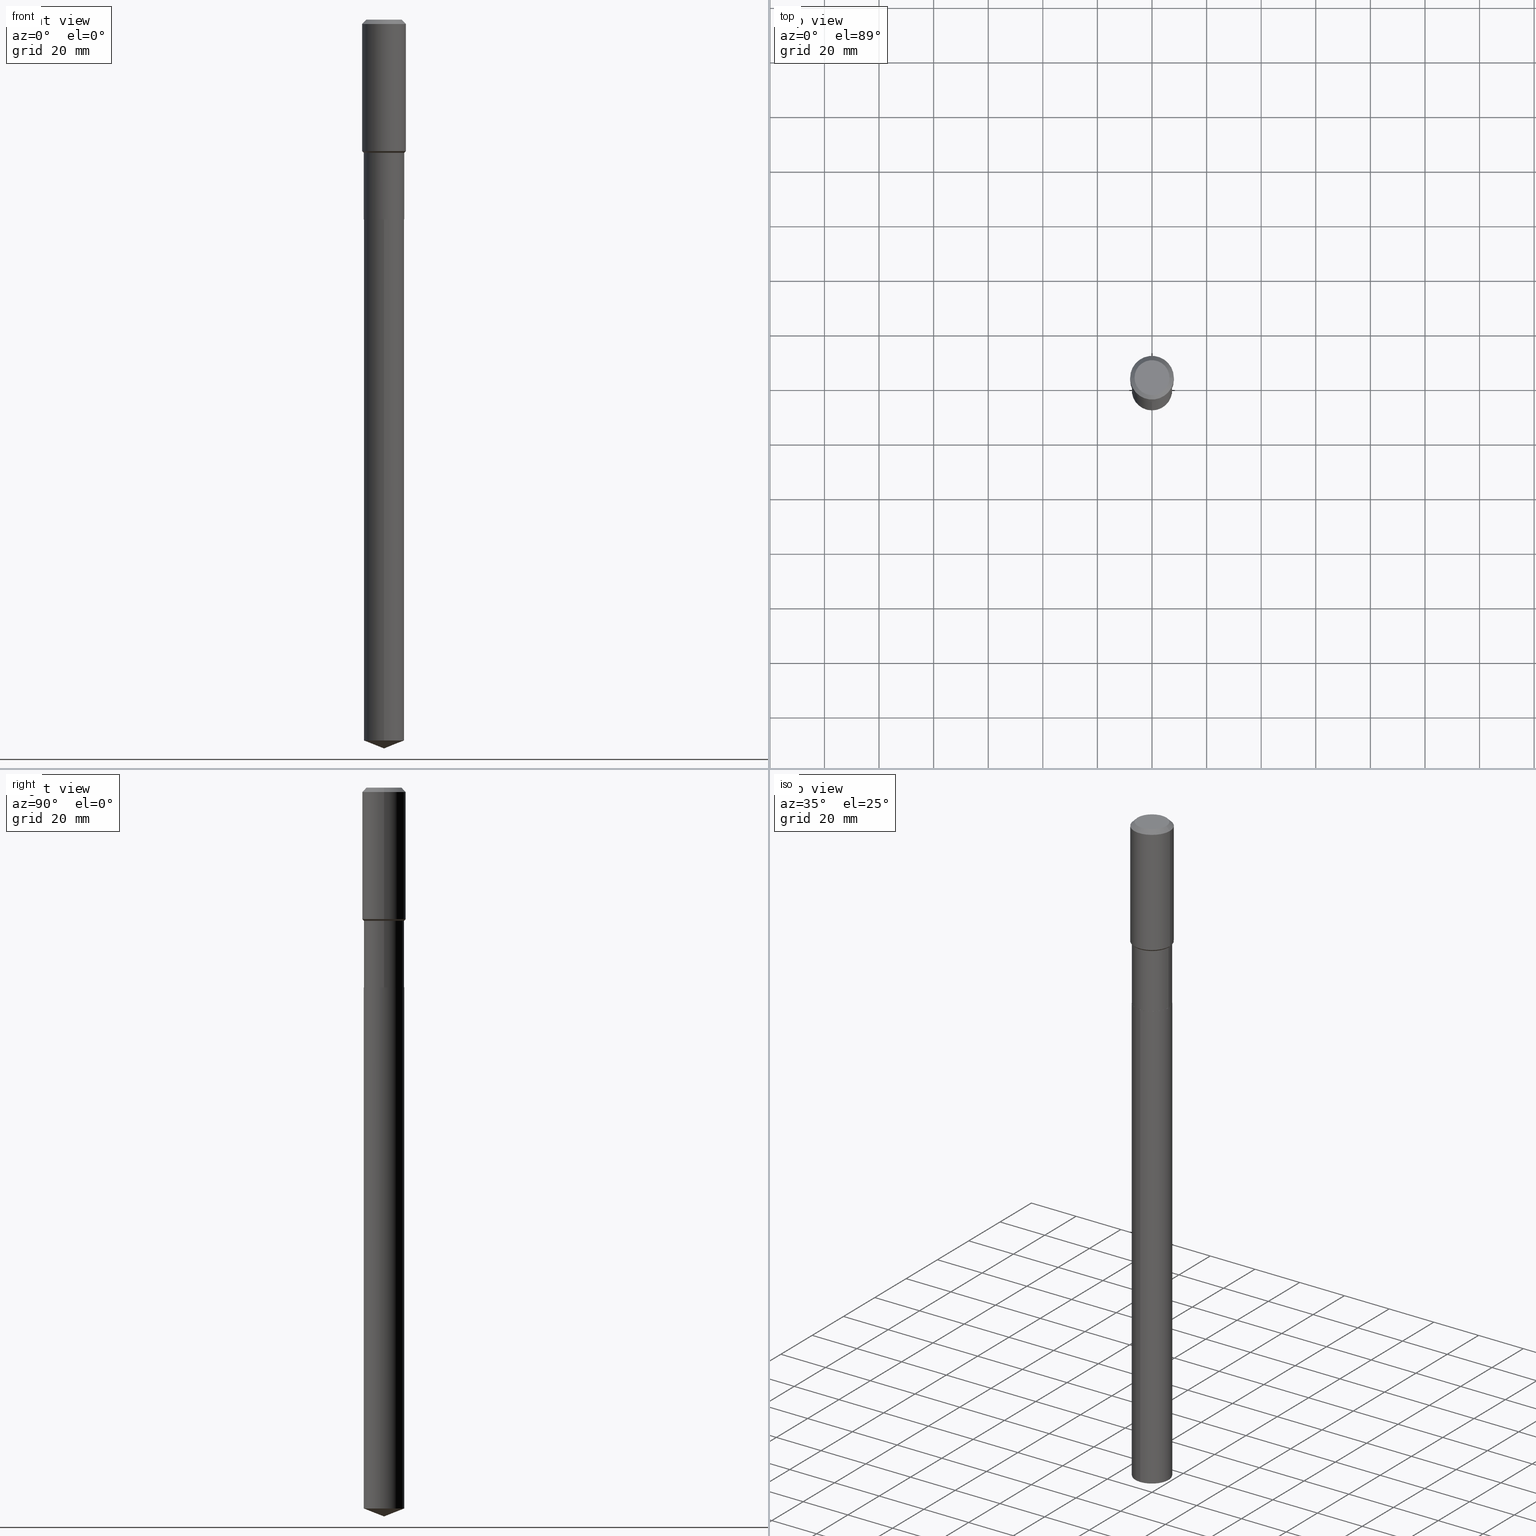
[diagram: canonical four-view strip — front | top / right | iso, engineering-drawing reading convention]
A machine part, canonical four-view strip (front | top / right | iso — engineering-drawing reading convention). The complete STEP part file that produces these views, byte-faithful:
ISO-10303-21;
HEADER;
FILE_DESCRIPTION (( 'STEP AP203' ),
    '1' );
FILE_NAME ('66807.STEP',
    '2024-04-25T06:45:04',
    ( '' ),
    ( '' ),
    'SwSTEP 2.0',
    'SolidWorks 2023',
    '' );
FILE_SCHEMA (( 'CONFIG_CONTROL_DESIGN' ));
ENDSEC;

DATA;
#1 = VERTEX_POINT ( 'NONE', #80 ) ;
#2 = DIRECTION ( 'NONE',  ( -2.445468806185136597E-29, 3.491481338843145583E-15, 1.000000000000000000 ) ) ;
#3 = ADVANCED_FACE ( 'NONE', ( #263 ), #102, .T. ) ;
#4 = ORIENTED_EDGE ( 'NONE', *, *, #92, .F. ) ;
#5 = DIRECTION ( 'NONE',  ( 1.000000000000000000, -6.982962677686265922E-15, 4.876176775795935793E-29 ) ) ;
#6 = CIRCLE ( 'NONE', #38, 0.2908499999999999974 ) ;
#7 = AXIS2_PLACEMENT_3D ( 'NONE', #27, #485, #24 ) ;
#8 = EDGE_LOOP ( 'NONE', ( #171, #224, #110, #112 ) ) ;
#9 = CYLINDRICAL_SURFACE ( 'NONE', #241, 0.2913499999999999424 ) ;
#10 = AXIS2_PLACEMENT_3D ( 'NONE', #61, #57, #182 ) ;
#11 = CARTESIAN_POINT ( 'NONE',  ( 4.639054325333201492E-29, -6.623340099785443286E-15, -1.896999999999998909 ) ) ;
#12 = ORIENTED_EDGE ( 'NONE', *, *, #276, .F. ) ;
#13 = DIRECTION ( 'NONE',  ( -6.982962677686265922E-15, -1.000000000000000000, 3.750606478344620614E-15 ) ) ;
#14 = CARTESIAN_POINT ( 'NONE',  ( 2.570700987484465252E-28, -3.670210724211602474E-14, -10.51200000000000045 ) ) ;
#15 = APPROVAL_PERSON_ORGANIZATION ( #179, #445, #316 ) ;
#16 = DIRECTION ( 'NONE',  ( -2.445468806185136597E-29, 3.491481338843145583E-15, 1.000000000000000000 ) ) ;
#17 = PERSON_AND_ORGANIZATION ( #104, #213 ) ;
#18 = EDGE_CURVE ( 'NONE', #295, #184, #487, .T. ) ;
#19 = CONICAL_SURFACE ( 'NONE', #151, 99.94676754583802847, 1.195550537616112852 ) ;
#20 = ORIENTED_EDGE ( 'NONE', *, *, #235, .T. ) ;
#21 = CIRCLE ( 'NONE', #384, 0.2913499999999999979 ) ;
#22 = ORIENTED_EDGE ( 'NONE', *, *, #18, .F. ) ;
#23 = CALENDAR_DATE ( 2024, 25, 4 ) ;
#24 = DIRECTION ( 'NONE',  ( 1.000000000000000000, -6.982962677686267499E-15, 0.000000000000000000 ) ) ;
#25 = ADVANCED_FACE ( 'NONE', ( #186 ), #221, .F. ) ;
#26 = ORIENTED_EDGE ( 'NONE', *, *, #68, .T. ) ;
#27 = CARTESIAN_POINT ( 'NONE',  ( 4.696767389159171856E-29, -6.705739059382142988E-15, -1.920599999999999197 ) ) ;
#28 = LINE ( 'NONE', #192, #332 ) ;
#29 = APPROVAL_PERSON_ORGANIZATION ( #150, #464, #291 ) ;
#30 = ORIENTED_EDGE ( 'NONE', *, *, #481, .F. ) ;
#31 = DIRECTION ( 'NONE',  ( -2.445468806185136597E-29, 3.491481338843145583E-15, 1.000000000000000000 ) ) ;
#32 = UNCERTAINTY_MEASURE_WITH_UNIT (LENGTH_MEASURE( 1.000000000000000082E-05 ), #99, 'distance_accuracy_value', 'NONE');
#33 = CARTESIAN_POINT ( 'NONE',  ( -9.427742298522569579E-47, 1.346031739168368629E-32, 3.855188123715871501E-18 ) ) ;
#34 = DATE_AND_TIME ( #302, #376 ) ;
#35 = ADVANCED_FACE ( 'NONE', ( #197 ), #19, .T. ) ;
#36 = CARTESIAN_POINT ( 'NONE',  ( -0.2908499999999999974, -7.993884740681349001E-15, -2.882199999999999207 ) ) ;
#37 = LINE ( 'NONE', #250, #334 ) ;
#38 = AXIS2_PLACEMENT_3D ( 'NONE', #242, #170, #301 ) ;
#39 = DIRECTION ( 'NONE',  ( -2.445491696897657882E-29, 3.491448558039956582E-15, 1.000000000000000000 ) ) ;
#40 = CARTESIAN_POINT ( 'NONE',  ( -0.3149500000000000077, -1.183779908383150389E-15, -0.06299000000000036514 ) ) ;
#41 = EDGE_LOOP ( 'NONE', ( #49, #154, #95, #223 ) ) ;
#42 = CARTESIAN_POINT ( 'NONE',  ( 1.540400801016026329E-30, -2.199284095337310135E-16, -0.06299000000000036514 ) ) ;
#43 = ADVANCED_FACE ( 'NONE', ( #73 ), #261, .T. ) ;
#44 = ORIENTED_EDGE ( 'NONE', *, *, #397, .T. ) ;
#45 = VERTEX_POINT ( 'NONE', #36 ) ;
#46 = DIRECTION ( 'NONE',  ( -1.000000000000000000, 6.982962677686266711E-15, 0.000000000000000000 ) ) ;
#47 = AXIS2_PLACEMENT_3D ( 'NONE', #126, #272, #401 ) ;
#48 = CONICAL_SURFACE ( 'NONE', #7, 0.2913499999999998868, 0.7853981633974497223 ) ;
#49 = ORIENTED_EDGE ( 'NONE', *, *, #393, .T. ) ;
#50 = ORIENTED_EDGE ( 'NONE', *, *, #433, .T. ) ;
#51 = CARTESIAN_POINT ( 'NONE',  ( -0.3149500000000001743, 2.237854346276436774E-15, -1.549218606675783237E-29 ) ) ;
#52 = ORIENTED_EDGE ( 'NONE', *, *, #319, .T. ) ;
#53 = EDGE_CURVE ( 'NONE', #308, #488, #270, .T. ) ;
#54 = EDGE_LOOP ( 'NONE', ( #381, #108 ) ) ;
#55 = FACE_OUTER_BOUND ( 'NONE', #174, .T. ) ;
#56 = CARTESIAN_POINT ( 'NONE',  ( 7.048330193186798900E-29, -1.006314751481371118E-14, -2.882199999999999207 ) ) ;
#57 = DIRECTION ( 'NONE',  ( -2.445468806185136597E-29, 3.491481338843145583E-15, 1.000000000000000000 ) ) ;
#58 = AXIS2_PLACEMENT_3D ( 'NONE', #419, #262, #293 ) ;
#59 = CIRCLE ( 'NONE', #365, 0.2913499999999999979 ) ;
#60 = DIRECTION ( 'NONE',  ( -2.445491696897657882E-29, 3.491448558039956977E-15, 1.000000000000000000 ) ) ;
#61 = CARTESIAN_POINT ( 'NONE',  ( 4.696767389159171856E-29, -6.705739059382142988E-15, -1.920599999999999197 ) ) ;
#62 = ADVANCED_FACE ( 'NONE', ( #412 ), #443, .F. ) ;
#63 = LINE ( 'NONE', #284, #113 ) ;
#64 = CARTESIAN_POINT ( 'NONE',  ( 0.2519600000000000173, -2.054606664725195058E-15, 3.855188123729206640E-18 ) ) ;
#65 = ORIENTED_EDGE ( 'NONE', *, *, #253, .F. ) ;
#66 = CALENDAR_DATE ( 2024, 25, 4 ) ;
#67 = AXIS2_PLACEMENT_3D ( 'NONE', #96, #305, #5 ) ;
#68 = EDGE_CURVE ( 'NONE', #407, #325, #162, .T. ) ;
#69 = CC_DESIGN_APPROVAL ( #209, ( #413 ) ) ;
#70 = CARTESIAN_POINT ( 'NONE',  ( 7.048330193186798900E-29, -1.006314751481371118E-14, -2.882199999999999207 ) ) ;
#71 = PERSON_AND_ORGANIZATION_ROLE ( 'design_supplier' ) ;
#72 = MANIFOLD_SOLID_BREP ( 'Body-Move/Copy2[1]', #364 ) ;
#73 = FACE_OUTER_BOUND ( 'NONE', #227, .T. ) ;
#74 = ORIENTED_EDGE ( 'NONE', *, *, #259, .F. ) ;
#75 = AXIS2_PLACEMENT_3D ( 'NONE', #420, #458, #84 ) ;
#76 = DIRECTION ( 'NONE',  ( -2.445468806185136597E-29, 3.491481338843145583E-15, 1.000000000000000000 ) ) ;
#77 = DIRECTION ( 'NONE',  ( 2.445491696897657322E-29, -3.491448558039956977E-15, -1.000000000000000000 ) ) ;
#78 = CC_DESIGN_PERSON_AND_ORGANIZATION_ASSIGNMENT ( #17, #181, ( #164 ) ) ;
#79 = CARTESIAN_POINT ( 'NONE',  ( 0.2908499999999999974, -1.209414220961876337E-14, -2.882199999999999207 ) ) ;
#80 = CARTESIAN_POINT ( 'NONE',  ( 2.570700871778817883E-28, -3.670210724211602474E-14, -10.51200000000000045 ) ) ;
#81 = APPROVAL_STATUS ( 'not_yet_approved' ) ;
#82 = DIRECTION ( 'NONE',  ( -2.445491696897657882E-29, 3.491448558039956977E-15, 1.000000000000000000 ) ) ;
#83 = APPLICATION_PROTOCOL_DEFINITION ( 'international standard', 'config_control_design', 1994, #141 ) ;
#84 = DIRECTION ( 'NONE',  ( -1.000000000000000000, 6.982962677686266711E-15, 0.000000000000000000 ) ) ;
#85 = DIRECTION ( 'NONE',  ( -2.445468806185136597E-29, 3.491481338843145583E-15, 1.000000000000000000 ) ) ;
#86 = EDGE_LOOP ( 'NONE', ( #176, #333, #337, #119 ) ) ;
#87 = ORIENTED_EDGE ( 'NONE', *, *, #440, .T. ) ;
#88 = LINE ( 'NONE', #51, #189 ) ;
#89 = AXIS2_PLACEMENT_3D ( 'NONE', #175, #85, #312 ) ;
#90 = DIRECTION ( 'NONE',  ( 1.000000000000000000, -6.982962677686265922E-15, 4.876176775795935232E-29 ) ) ;
#91 = AXIS2_PLACEMENT_3D ( 'NONE', #153, #207, #231 ) ;
#92 = EDGE_CURVE ( 'NONE', #308, #346, #28, .T. ) ;
#93 = LINE ( 'NONE', #14, #404 ) ;
#94 = ORIENTED_EDGE ( 'NONE', *, *, #345, .F. ) ;
#95 = ORIENTED_EDGE ( 'NONE', *, *, #433, .F. ) ;
#96 = CARTESIAN_POINT ( 'NONE',  ( 7.048330193186798900E-29, -1.006314751481371118E-14, -2.882199999999999207 ) ) ;
#97 = FACE_OUTER_BOUND ( 'NONE', #41, .T. ) ;
#98 = CONICAL_SURFACE ( 'NONE', #249, 0.2908499999999999974, 0.7853981633973118326 ) ;
#99 =( CONVERSION_BASED_UNIT ( 'INCH', #300 ) LENGTH_UNIT ( ) NAMED_UNIT ( #279 ) );
#100 = ADVANCED_FACE ( 'NONE', ( #340 ), #296, .T. ) ;
#101 = CYLINDRICAL_SURFACE ( 'NONE', #294, 0.3149500000000001743 ) ;
#102 = CONICAL_SURFACE ( 'NONE', #58, 0.2913499999999998868, 0.7853981633974497223 ) ;
#103 = AXIS2_PLACEMENT_3D ( 'NONE', #354, #131, #268 ) ;
#104 = PERSON ( 'UNSPECIFIED', 'UNSPECIFIED', 'UNSPECIFIED', ('UNSPECIFIED'), ('UNSPECIFIED'), ('UNSPECIFIED') ) ;
#105 = DIRECTION ( 'NONE',  ( -0.7071067811865484609, 7.493145998870357316E-15, 0.7071067811865464625 ) ) ;
#106 = DIRECTION ( 'NONE',  ( -2.445468806185136597E-29, 3.491481338843145583E-15, 1.000000000000000000 ) ) ;
#107 = CARTESIAN_POINT ( 'NONE',  ( -0.2913499999999999424, 2.070166260637051482E-15, -1.433131738545766651E-29 ) ) ;
#108 = ORIENTED_EDGE ( 'NONE', *, *, #203, .F. ) ;
#109 = ADVANCED_BREP_SHAPE_REPRESENTATION ( '66807', ( #72, #391, #395 ), #233 ) ;
#110 = ORIENTED_EDGE ( 'NONE', *, *, #111, .T. ) ;
#111 = EDGE_CURVE ( 'NONE', #191, #482, #117, .T. ) ;
#112 = ORIENTED_EDGE ( 'NONE', *, *, #409, .F. ) ;
#113 = VECTOR ( 'NONE', #105, 39.37007874015748854 ) ;
#114 = APPROVAL_DATE_TIME ( #34, #209 ) ;
#115 = CARTESIAN_POINT ( 'NONE',  ( -0.2519600000000000173, 1.869391481036695286E-15, 3.855188123703182704E-18 ) ) ;
#116 = CC_DESIGN_APPROVAL ( #445, ( #164 ) ) ;
#117 = LINE ( 'NONE', #266, #168 ) ;
#118 = LINE ( 'NONE', #417, #446 ) ;
#119 = ORIENTED_EDGE ( 'NONE', *, *, #440, .F. ) ;
#120 = CARTESIAN_POINT ( 'NONE',  ( 0.000000000000000000, 0.000000000000000000, 0.000000000000000000 ) ) ;
#121 = FACE_OUTER_BOUND ( 'NONE', #225, .T. ) ;
#122 = ORIENTED_EDGE ( 'NONE', *, *, #53, .F. ) ;
#123 = AXIS2_PLACEMENT_3D ( 'NONE', #341, #232, #90 ) ;
#124 = ORIENTED_EDGE ( 'NONE', *, *, #336, .T. ) ;
#125 = PRODUCT_DEFINITION_FORMATION_WITH_SPECIFIED_SOURCE ( 'ANY', '', #228, .NOT_KNOWN. ) ;
#126 = CARTESIAN_POINT ( 'NONE',  ( 4.639054325333201492E-29, -6.623340099785443286E-15, -1.896999999999998909 ) ) ;
#127 = AXIS2_PLACEMENT_3D ( 'NONE', #371, #76, #158 ) ;
#128 = FACE_OUTER_BOUND ( 'NONE', #208, .T. ) ;
#129 = ADVANCED_FACE ( 'NONE', ( #229 ), #380, .T. ) ;
#130 = ORIENTED_EDGE ( 'NONE', *, *, #453, .F. ) ;
#131 = DIRECTION ( 'NONE',  ( -2.445468806185136597E-29, 3.491481338843145583E-15, 1.000000000000000000 ) ) ;
#132 = ORIENTED_EDGE ( 'NONE', *, *, #457, .T. ) ;
#133 = AXIS2_PLACEMENT_3D ( 'NONE', #297, #193, #451 ) ;
#134 = APPLICATION_PROTOCOL_DEFINITION ( 'international standard', 'config_control_design', 1994, #169 ) ;
#135 = DIRECTION ( 'NONE',  ( 1.000000000000000000, -6.982962677686265922E-15, 4.876176775795936353E-29 ) ) ;
#136 = COORDINATED_UNIVERSAL_TIME_OFFSET ( 5, 0, .BEHIND. ) ;
#137 = EDGE_CURVE ( 'NONE', #408, #45, #6, .T. ) ;
#138 = ORIENTED_EDGE ( 'NONE', *, *, #367, .T. ) ;
#139 = DIRECTION ( 'NONE',  ( -0.7071067811865453523, 2.468850131082234184E-15, -0.7071067811865496822 ) ) ;
#140 = DIRECTION ( 'NONE',  ( 6.611014441532049234E-15, 0.9304175679820246847, 0.3665012267242966360 ) ) ;
#141 = APPLICATION_CONTEXT ( 'configuration controlled 3d designs of mechanical parts and assemblies' ) ;
#142 = CARTESIAN_POINT ( 'NONE',  ( 2.070166260637307467E-15, 0.2913499999999899503, -2.882200000000000095 ) ) ;
#143 = APPROVAL_STATUS ( 'not_yet_approved' ) ;
#144 = EDGE_LOOP ( 'NONE', ( #201, #314, #124, #324 ) ) ;
#145 = PERSON_AND_ORGANIZATION ( #104, #213 ) ;
#146 = DIRECTION ( 'NONE',  ( 1.000000000000000000, -6.982962677686269077E-15, 0.000000000000000000 ) ) ;
#147 = EDGE_LOOP ( 'NONE', ( #26, #390 ) ) ;
#148 = PERSON_AND_ORGANIZATION_ROLE ( 'classification_officer' ) ;
#149 = CARTESIAN_POINT ( 'NONE',  ( 7.048330193186798900E-29, -1.006314751481371118E-14, -2.882199999999999207 ) ) ;
#150 = PERSON_AND_ORGANIZATION ( #104, #213 ) ;
#151 = AXIS2_PLACEMENT_3D ( 'NONE', #378, #39, #410 ) ;
#152 = VECTOR ( 'NONE', #60, 39.37007874015748143 ) ;
#153 = CARTESIAN_POINT ( 'NONE',  ( 2.542628388944317848E-28, -3.630150277642420534E-14, -10.39723418292958534 ) ) ;
#154 = ORIENTED_EDGE ( 'NONE', *, *, #18, .T. ) ;
#155 = PERSON_AND_ORGANIZATION ( #104, #213 ) ;
#156 = ADVANCED_FACE ( 'NONE', ( #128 ), #9, .T. ) ;
#157 = DIRECTION ( 'NONE',  ( -6.982962677686265922E-15, -1.000000000000000000, 3.750606478344620614E-15 ) ) ;
#158 = DIRECTION ( 'NONE',  ( 1.000000000000000000, -6.982962677686267499E-15, 0.000000000000000000 ) ) ;
#159 = CARTESIAN_POINT ( 'NONE',  ( -4.713871149261284790E-47, 6.730158695841843144E-33, 1.927594061857935750E-18 ) ) ;
#160 = AXIS2_PLACEMENT_3D ( 'NONE', #462, #432, #13 ) ;
#161 = PRODUCT_DEFINITION_SHAPE ( 'NONE', 'NONE',  #164 ) ;
#162 = CIRCLE ( 'NONE', #211, 0.2519600000000000173 ) ;
#163 = ORIENTED_EDGE ( 'NONE', *, *, #271, .T. ) ;
#164 = PRODUCT_DEFINITION ( 'UNKNOWN', '', #125, #220 ) ;
#165 = CARTESIAN_POINT ( 'NONE',  ( 0.3149500000000002298, -8.822624195122734735E-15, -1.896999999999998909 ) ) ;
#166 = DIRECTION ( 'NONE',  ( 1.000000000000000000, -6.982962677686266711E-15, 0.000000000000000000 ) ) ;
#167 = ORIENTED_EDGE ( 'NONE', *, *, #244, .F. ) ;
#168 = VECTOR ( 'NONE', #416, 39.37007874015748143 ) ;
#169 = APPLICATION_CONTEXT ( 'configuration controlled 3d designs of mechanical parts and assemblies' ) ;
#170 = DIRECTION ( 'NONE',  ( -2.445468806185136597E-29, 3.491481338843145583E-15, 1.000000000000000000 ) ) ;
#171 = ORIENTED_EDGE ( 'NONE', *, *, #187, .F. ) ;
#172 = DIRECTION ( 'NONE',  ( -2.445468806185136877E-29, 3.491481338843145188E-15, 1.000000000000000000 ) ) ;
#173 = DIRECTION ( 'NONE',  ( -6.497071151882103270E-15, -0.9304175679820221312, 0.3665012267243032418 ) ) ;
#174 = EDGE_LOOP ( 'NONE', ( #167, #245, #163, #311 ) ) ;
#175 = CARTESIAN_POINT ( 'NONE',  ( 7.048330193186798900E-29, -1.006314751481371118E-14, -2.882199999999999207 ) ) ;
#176 = ORIENTED_EDGE ( 'NONE', *, *, #424, .T. ) ;
#177 = CIRCLE ( 'NONE', #89, 0.2908499999999999974 ) ;
#178 = PRODUCT_RELATED_PRODUCT_CATEGORY ( 'detail', '', ( #228 ) ) ;
#179 = PERSON_AND_ORGANIZATION ( #104, #213 ) ;
#180 = DIRECTION ( 'NONE',  ( 1.000000000000000000, -6.982962677686269077E-15, 0.000000000000000000 ) ) ;
#181 = PERSON_AND_ORGANIZATION_ROLE ( 'creator' ) ;
#182 = DIRECTION ( 'NONE',  ( 1.000000000000000000, -6.982962677686267499E-15, 0.000000000000000000 ) ) ;
#183 = VECTOR ( 'NONE', #455, 39.37007874015748143 ) ;
#184 = VERTEX_POINT ( 'NONE', #202 ) ;
#185 = CARTESIAN_POINT ( 'NONE',  ( 1.540400801016026329E-30, -2.199284095337310135E-16, -0.06299000000000036514 ) ) ;
#186 = FACE_OUTER_BOUND ( 'NONE', #147, .T. ) ;
#187 = EDGE_CURVE ( 'NONE', #418, #428, #88, .T. ) ;
#188 = PERSON_AND_ORGANIZATION ( #104, #213 ) ;
#189 = VECTOR ( 'NONE', #172, 39.37007874015748143 ) ;
#190 = CIRCLE ( 'NONE', #103, 0.2913499999999998868 ) ;
#191 = VERTEX_POINT ( 'NONE', #165 ) ;
#192 = CARTESIAN_POINT ( 'NONE',  ( 2.070166260637122085E-15, 0.2913499999999898948, -2.882200000000000095 ) ) ;
#193 = DIRECTION ( 'NONE',  ( -2.445491696897657882E-29, 3.491448558039956582E-15, 1.000000000000000000 ) ) ;
#194 = VECTOR ( 'NONE', #388, 39.37007874015748143 ) ;
#195 = CARTESIAN_POINT ( 'NONE',  ( -2.034486176143639215E-15, -0.2913500000000363022, -10.39723418292958534 ) ) ;
#196 = ADVANCED_FACE ( 'NONE', ( #353 ), #269, .T. ) ;
#197 = FACE_OUTER_BOUND ( 'NONE', #414, .T. ) ;
#198 = EDGE_LOOP ( 'NONE', ( #50, #138, #30, #422 ) ) ;
#199 = CARTESIAN_POINT ( 'NONE',  ( 0.3149500000000000077, -2.419212504871020909E-15, -0.06299000000000036514 ) ) ;
#200 = DIRECTION ( 'NONE',  ( -2.445468806185136597E-29, 3.491481338843145583E-15, 1.000000000000000000 ) ) ;
#201 = ORIENTED_EDGE ( 'NONE', *, *, #235, .F. ) ;
#202 = CARTESIAN_POINT ( 'NONE',  ( -0.2913499999999998868, -6.313404156126164850E-15, -1.920599999999999197 ) ) ;
#203 = EDGE_CURVE ( 'NONE', #45, #408, #177, .T. ) ;
#204 = AXIS2_PLACEMENT_3D ( 'NONE', #149, #344, #157 ) ;
#205 = EDGE_LOOP ( 'NONE', ( #330, #304, #265 ) ) ;
#206 = DIRECTION ( 'NONE',  ( 1.000000000000000000, -6.982962677686265922E-15, 4.876176775795936353E-29 ) ) ;
#207 = DIRECTION ( 'NONE',  ( -2.445491696897657882E-29, 3.491448558039956582E-15, 1.000000000000000000 ) ) ;
#208 = EDGE_LOOP ( 'NONE', ( #22, #352, #379, #452 ) ) ;
#209 = APPROVAL ( #143, 'UNSPECIFIED' ) ;
#210 = DIRECTION ( 'NONE',  ( 2.445468806185136597E-29, -3.491481338843145583E-15, -1.000000000000000000 ) ) ;
#211 = AXIS2_PLACEMENT_3D ( 'NONE', #33, #31, #486 ) ;
#212 = CARTESIAN_POINT ( 'NONE',  ( 7.048330193186798900E-29, -1.006314751481371118E-14, -2.882199999999999207 ) ) ;
#213 = ORGANIZATION ( 'UNSPECIFIED', 'UNSPECIFIED', '' ) ;
#214 = LINE ( 'NONE', #356, #152 ) ;
#215 = CARTESIAN_POINT ( 'NONE',  ( 0.000000000000000000, 0.000000000000000000, 0.000000000000000000 ) ) ;
#216 = DATE_TIME_ROLE ( 'creation_date' ) ;
#217 = APPROVAL_PERSON_ORGANIZATION ( #188, #209, #218 ) ;
#218 = APPROVAL_ROLE ( '' ) ;
#219 = ADVANCED_FACE ( 'NONE', ( #237 ), #463, .F. ) ;
#220 = DESIGN_CONTEXT ( 'detailed design', #169, 'design' ) ;
#221 = PLANE ( 'NONE',  #449 ) ;
#222 = CALENDAR_DATE ( 2024, 25, 4 ) ;
#223 = ORIENTED_EDGE ( 'NONE', *, *, #327, .F. ) ;
#224 = ORIENTED_EDGE ( 'NONE', *, *, #259, .T. ) ;
#225 = EDGE_LOOP ( 'NONE', ( #94, #411, #260, #348 ) ) ;
#226 = DIRECTION ( 'NONE',  ( -2.445468806185136597E-29, 3.491481338843145583E-15, 1.000000000000000000 ) ) ;
#227 = EDGE_LOOP ( 'NONE', ( #4, #425, #87, #12 ) ) ;
#228 = PRODUCT ( '66807', '66807', '', ( #359 ) ) ;
#229 = FACE_OUTER_BOUND ( 'NONE', #8, .T. ) ;
#230 = ADVANCED_FACE ( 'NONE', ( #55 ), #321, .T. ) ;
#231 = DIRECTION ( 'NONE',  ( -6.982962677686265922E-15, -1.000000000000000000, 0.000000000000000000 ) ) ;
#232 = DIRECTION ( 'NONE',  ( -2.445468806185136597E-29, 3.491481338843145583E-15, 1.000000000000000000 ) ) ;
#233 =( GEOMETRIC_REPRESENTATION_CONTEXT ( 3 ) GLOBAL_UNCERTAINTY_ASSIGNED_CONTEXT ( ( #32 ) ) GLOBAL_UNIT_ASSIGNED_CONTEXT ( ( #99, #349, #454 ) ) REPRESENTATION_CONTEXT ( 'NONE', 'WORKASPACE' ) );
#234 = CARTESIAN_POINT ( 'NONE',  ( 0.3149500000000000077, -2.380642253931875190E-15, -0.06299000000000036514 ) ) ;
#235 = EDGE_CURVE ( 'NONE', #45, #295, #490, .T. ) ;
#236 = ORIENTED_EDGE ( 'NONE', *, *, #336, .F. ) ;
#237 = FACE_OUTER_BOUND ( 'NONE', #54, .T. ) ;
#238 = ADVANCED_FACE ( 'NONE', ( #121 ), #363, .T. ) ;
#239 = AXIS2_PLACEMENT_3D ( 'NONE', #281, #437, #251 ) ;
#240 = CIRCLE ( 'NONE', #459, 0.3149500000000000077 ) ;
#241 = AXIS2_PLACEMENT_3D ( 'NONE', #246, #200, #206 ) ;
#242 = CARTESIAN_POINT ( 'NONE',  ( 7.048330193186798900E-29, -1.006314751481371118E-14, -2.882199999999999207 ) ) ;
#243 = CARTESIAN_POINT ( 'NONE',  ( -2.034486176143823414E-15, -0.2913500000000100454, -2.882199999999997875 ) ) ;
#244 = EDGE_CURVE ( 'NONE', #325, #482, #423, .T. ) ;
#245 = ORIENTED_EDGE ( 'NONE', *, *, #68, .F. ) ;
#246 = CARTESIAN_POINT ( 'NONE',  ( 0.000000000000000000, 0.000000000000000000, 0.000000000000000000 ) ) ;
#247 =( LENGTH_UNIT ( ) NAMED_UNIT ( * ) SI_UNIT ( $, .METRE. ) );
#248 = LINE ( 'NONE', #326, #394 ) ;
#249 = AXIS2_PLACEMENT_3D ( 'NONE', #212, #16, #180 ) ;
#250 = CARTESIAN_POINT ( 'NONE',  ( 2.570687676656492133E-28, -3.670229620377793132E-14, -10.51200000000000045 ) ) ;
#251 = DIRECTION ( 'NONE',  ( 1.000000000000000000, -6.982962677686266711E-15, 4.876115136096691995E-29 ) ) ;
#252 = LOCAL_TIME ( 2, 45, 4.000000000000000000, #318 ) ;
#253 = EDGE_CURVE ( 'NONE', #482, #428, #240, .T. ) ;
#254 = CARTESIAN_POINT ( 'NONE',  ( 7.047107458783706099E-29, -1.006140177414428889E-14, -2.881699999999999040 ) ) ;
#255 = CC_DESIGN_PERSON_AND_ORGANIZATION_ASSIGNMENT ( #145, #148, ( #413 ) ) ;
#256 = CARTESIAN_POINT ( 'NONE',  ( 2.070166260637305890E-15, 0.2913499999999637491, -10.39723418292958534 ) ) ;
#257 = EDGE_LOOP ( 'NONE', ( #132, #448 ) ) ;
#258 = DIRECTION ( 'NONE',  ( -2.445491696897657882E-29, 3.491448558039956582E-15, 1.000000000000000000 ) ) ;
#259 = EDGE_CURVE ( 'NONE', #418, #191, #283, .T. ) ;
#260 = ORIENTED_EDGE ( 'NONE', *, *, #253, .T. ) ;
#261 = CYLINDRICAL_SURFACE ( 'NONE', #204, 0.2913499999999999979 ) ;
#262 = DIRECTION ( 'NONE',  ( -2.445468806185136597E-29, 3.491481338843145583E-15, 1.000000000000000000 ) ) ;
#263 = FACE_OUTER_BOUND ( 'NONE', #434, .T. ) ;
#264 = CLOSED_SHELL ( 'NONE', ( #303, #238, #313, #403, #282, #156, #3, #129, #230, #25, #219, #339 ) ) ;
#265 = ORIENTED_EDGE ( 'NONE', *, *, #424, .F. ) ;
#266 = CARTESIAN_POINT ( 'NONE',  ( 0.3149500000000001743, -2.199284095337290660E-15, 1.535751875536930690E-29 ) ) ;
#267 = ORIENTED_EDGE ( 'NONE', *, *, #481, .T. ) ;
#268 = DIRECTION ( 'NONE',  ( 1.000000000000000000, -6.982962677686267499E-15, 0.000000000000000000 ) ) ;
#269 = CYLINDRICAL_SURFACE ( 'NONE', #160, 0.2913499999999999979 ) ;
#270 = CIRCLE ( 'NONE', #429, 0.2913499999999999979 ) ;
#271 = EDGE_CURVE ( 'NONE', #407, #428, #248, .T. ) ;
#272 = DIRECTION ( 'NONE',  ( -2.445468806185136597E-29, 3.491481338843145583E-15, 1.000000000000000000 ) ) ;
#273 = CIRCLE ( 'NONE', #10, 0.2913499999999998868 ) ;
#274 = VERTEX_POINT ( 'NONE', #473 ) ;
#275 = CIRCLE ( 'NONE', #91, 0.2913499999999999979 ) ;
#276 = EDGE_CURVE ( 'NONE', #346, #456, #21, .T. ) ;
#277 = DIRECTION ( 'NONE',  ( 0.000000000000000000, 0.000000000000000000, 1.000000000000000000 ) ) ;
#278 = DIRECTION ( 'NONE',  ( -2.445468806185136597E-29, 3.491481338843145583E-15, 1.000000000000000000 ) ) ;
#279 = DIMENSIONAL_EXPONENTS ( 1.000000000000000000, 0.000000000000000000, 0.000000000000000000, 0.000000000000000000, 0.000000000000000000, 0.000000000000000000, 0.000000000000000000 ) ;
#280 = CALENDAR_DATE ( 2024, 25, 4 ) ;
#281 = CARTESIAN_POINT ( 'NONE',  ( -9.427742298522569579E-47, 1.346031739168368629E-32, 3.855188123715871501E-18 ) ) ;
#282 = ADVANCED_FACE ( 'NONE', ( #97 ), #315, .T. ) ;
#283 = CIRCLE ( 'NONE', #47, 0.3149500000000002298 ) ;
#284 = CARTESIAN_POINT ( 'NONE',  ( -0.2913499999999998868, -4.635572798745091900E-15, -1.920599999999999197 ) ) ;
#285 = AXIS2_PLACEMENT_3D ( 'NONE', #185, #226, #331 ) ;
#286 = DIRECTION ( 'NONE',  ( -2.445468806185136597E-29, 3.491481338843145583E-15, 1.000000000000000000 ) ) ;
#287 = LINE ( 'NONE', #360, #369 ) ;
#288 = CC_DESIGN_DATE_AND_TIME_ASSIGNMENT ( #438, #289, ( #413 ) ) ;
#289 = DATE_TIME_ROLE ( 'classification_date' ) ;
#290 = CARTESIAN_POINT ( 'NONE',  ( 2.542628388944317848E-28, -3.630150277642420534E-14, -10.39723418292958534 ) ) ;
#291 = APPROVAL_ROLE ( '' ) ;
#292 = AXIS2_PLACEMENT_3D ( 'NONE', #478, #286, #146 ) ;
#293 = DIRECTION ( 'NONE',  ( 1.000000000000000000, -6.982962677686267499E-15, 0.000000000000000000 ) ) ;
#294 = AXIS2_PLACEMENT_3D ( 'NONE', #215, #278, #402 ) ;
#295 = VERTEX_POINT ( 'NONE', #317 ) ;
#296 = CONICAL_SURFACE ( 'NONE', #133, 99.94676754583802847, 1.195550537616112852 ) ;
#297 = CARTESIAN_POINT ( 'NONE',  ( -7.057225792308557665E-28, 1.007564029242954064E-13, 28.85807874015748098 ) ) ;
#298 = ORIENTED_EDGE ( 'NONE', *, *, #474, .T. ) ;
#299 = VERTEX_POINT ( 'NONE', #322 ) ;
#300 = LENGTH_MEASURE_WITH_UNIT ( LENGTH_MEASURE( 0.02539999999999999897 ), #247 );
#301 = DIRECTION ( 'NONE',  ( 1.000000000000000000, -6.982962677686269077E-15, 0.000000000000000000 ) ) ;
#302 = CALENDAR_DATE ( 2024, 25, 4 ) ;
#303 = ADVANCED_FACE ( 'NONE', ( #476 ), #406, .T. ) ;
#304 = ORIENTED_EDGE ( 'NONE', *, *, #453, .T. ) ;
#305 = DIRECTION ( 'NONE',  ( -2.438088387897960049E-29, 3.491481338843145188E-15, 1.000000000000000000 ) ) ;
#306 = LOCAL_TIME ( 2, 45, 4.000000000000000000, #444 ) ;
#307 = CARTESIAN_POINT ( 'NONE',  ( -0.2908499999999999974, -7.996533967855460991E-15, -2.882199999999999207 ) ) ;
#308 = VERTEX_POINT ( 'NONE', #256 ) ;
#309 = DIRECTION ( 'NONE',  ( 1.000000000000000000, -6.982962677686264344E-15, 0.000000000000000000 ) ) ;
#310 = ORIENTED_EDGE ( 'NONE', *, *, #137, .T. ) ;
#311 = ORIENTED_EDGE ( 'NONE', *, *, #409, .T. ) ;
#312 = DIRECTION ( 'NONE',  ( 1.000000000000000000, -6.982962677686269077E-15, 0.000000000000000000 ) ) ;
#313 = ADVANCED_FACE ( 'NONE', ( #400 ), #101, .T. ) ;
#314 = ORIENTED_EDGE ( 'NONE', *, *, #203, .T. ) ;
#315 = CYLINDRICAL_SURFACE ( 'NONE', #442, 0.2913499999999999424 ) ;
#316 = APPROVAL_ROLE ( '' ) ;
#317 = CARTESIAN_POINT ( 'NONE',  ( -0.2913499999999999979, -6.313404156126164061E-15, -2.881699999999999040 ) ) ;
#318 = COORDINATED_UNIVERSAL_TIME_OFFSET ( 5, 0, .BEHIND. ) ;
#319 = EDGE_CURVE ( 'NONE', #184, #274, #273, .T. ) ;
#320 = DIRECTION ( 'NONE',  ( 0.7071067811864509833, -2.468850131081245741E-15, 0.7071067811866440511 ) ) ;
#321 = CONICAL_SURFACE ( 'NONE', #342, 0.3149500000000000077, 0.7853981633974452814 ) ;
#322 = CARTESIAN_POINT ( 'NONE',  ( 0.2913499999999999979, -1.209588795028818409E-14, -2.881699999999999040 ) ) ;
#323 = CIRCLE ( 'NONE', #285, 0.3149500000000000077 ) ;
#324 = ORIENTED_EDGE ( 'NONE', *, *, #382, .F. ) ;
#325 = VERTEX_POINT ( 'NONE', #64 ) ;
#326 = CARTESIAN_POINT ( 'NONE',  ( -0.3149500000000000077, 1.979355685803558833E-15, -0.06299000000000036514 ) ) ;
#327 = EDGE_CURVE ( 'NONE', #299, #274, #287, .T. ) ;
#328 = APPROVAL_DATE_TIME ( #361, #464 ) ;
#329 = PERSON_AND_ORGANIZATION_ROLE ( 'creator' ) ;
#330 = ORIENTED_EDGE ( 'NONE', *, *, #474, .F. ) ;
#331 = DIRECTION ( 'NONE',  ( 1.000000000000000000, -6.982962677686266711E-15, 0.000000000000000000 ) ) ;
#332 = VECTOR ( 'NONE', #82, 39.37007874015748143 ) ;
#333 = ORIENTED_EDGE ( 'NONE', *, *, #92, .T. ) ;
#334 = VECTOR ( 'NONE', #173, 39.37007874015748854 ) ;
#335 = DIRECTION ( 'NONE',  ( 1.000000000000000000, -6.982962677686267499E-15, 0.000000000000000000 ) ) ;
#336 = EDGE_CURVE ( 'NONE', #408, #299, #435, .T. ) ;
#337 = ORIENTED_EDGE ( 'NONE', *, *, #457, .F. ) ;
#338 = DIRECTION ( 'NONE',  ( -6.982962677686265922E-15, -1.000000000000000000, 0.000000000000000000 ) ) ;
#339 = ADVANCED_FACE ( 'NONE', ( #398 ), #98, .T. ) ;
#340 = FACE_OUTER_BOUND ( 'NONE', #205, .T. ) ;
#341 = CARTESIAN_POINT ( 'NONE',  ( 0.000000000000000000, 0.000000000000000000, 0.000000000000000000 ) ) ;
#342 = AXIS2_PLACEMENT_3D ( 'NONE', #392, #210, #46 ) ;
#343 = CC_DESIGN_SECURITY_CLASSIFICATION ( #413, ( #125 ) ) ;
#344 = DIRECTION ( 'NONE',  ( -2.445491696897657882E-29, 3.491448558039956582E-15, 1.000000000000000000 ) ) ;
#345 = EDGE_CURVE ( 'NONE', #325, #407, #427, .T. ) ;
#346 = VERTEX_POINT ( 'NONE', #142 ) ;
#347 = ORIENTED_EDGE ( 'NONE', *, *, #111, .F. ) ;
#348 = ORIENTED_EDGE ( 'NONE', *, *, #271, .F. ) ;
#349 =( NAMED_UNIT ( * ) PLANE_ANGLE_UNIT ( ) SI_UNIT ( $, .RADIAN. ) );
#350 = EDGE_LOOP ( 'NONE', ( #267, #368, #65, #347 ) ) ;
#351 = CC_DESIGN_PERSON_AND_ORGANIZATION_ASSIGNMENT ( #155, #329, ( #125 ) ) ;
#352 = ORIENTED_EDGE ( 'NONE', *, *, #382, .T. ) ;
#353 = FACE_OUTER_BOUND ( 'NONE', #86, .T. ) ;
#354 = CARTESIAN_POINT ( 'NONE',  ( 4.696767389159171856E-29, -6.705739059382142988E-15, -1.920599999999999197 ) ) ;
#355 = DIRECTION ( 'NONE',  ( -2.445468806185136597E-29, 3.491481338843145583E-15, 1.000000000000000000 ) ) ;
#356 = CARTESIAN_POINT ( 'NONE',  ( -2.034486176143823414E-15, -0.2913500000000100454, -2.882199999999997875 ) ) ;
#357 = VECTOR ( 'NONE', #375, 39.37007874015748143 ) ;
#358 = DIRECTION ( 'NONE',  ( -2.445468806185136877E-29, 3.491481338843145188E-15, 1.000000000000000000 ) ) ;
#359 = MECHANICAL_CONTEXT ( 'NONE', #141, 'mechanical' ) ;
#360 = CARTESIAN_POINT ( 'NONE',  ( 0.2913499999999999424, -2.034486176143893229E-15, 1.420674103628145772E-29 ) ) ;
#361 = DATE_AND_TIME ( #23, #465 ) ;
#362 = PERSON_AND_ORGANIZATION ( #104, #213 ) ;
#363 = CONICAL_SURFACE ( 'NONE', #75, 0.3149500000000000077, 0.7853981633974452814 ) ;
#364 = CLOSED_SHELL ( 'NONE', ( #196, #100, #35, #43, #62 ) ) ;
#365 = AXIS2_PLACEMENT_3D ( 'NONE', #56, #396, #383 ) ;
#366 = AXIS2_PLACEMENT_3D ( 'NONE', #254, #106, #335 ) ;
#367 = EDGE_CURVE ( 'NONE', #184, #418, #63, .T. ) ;
#368 = ORIENTED_EDGE ( 'NONE', *, *, #187, .T. ) ;
#369 = VECTOR ( 'NONE', #358, 39.37007874015748143 ) ;
#370 = APPROVAL_STATUS ( 'not_yet_approved' ) ;
#371 = CARTESIAN_POINT ( 'NONE',  ( 7.047107458783706099E-29, -1.006140177414428889E-14, -2.881699999999999040 ) ) ;
#372 = DIRECTION ( 'NONE',  ( 6.982962677686265922E-15, 1.000000000000000000, -3.491448558039956977E-15 ) ) ;
#373 = ORIENTED_EDGE ( 'NONE', *, *, #393, .F. ) ;
#374 = AXIS2_PLACEMENT_3D ( 'NONE', #70, #77, #372 ) ;
#375 = DIRECTION ( 'NONE',  ( -2.445468806185136877E-29, 3.491481338843145188E-15, 1.000000000000000000 ) ) ;
#376 = LOCAL_TIME ( 2, 45, 4.000000000000000000, #405 ) ;
#377 = CC_DESIGN_PERSON_AND_ORGANIZATION_ASSIGNMENT ( #362, #71, ( #125 ) ) ;
#378 = CARTESIAN_POINT ( 'NONE',  ( -7.057225792308557665E-28, 1.007564029242954064E-13, 28.85807874015748098 ) ) ;
#379 = ORIENTED_EDGE ( 'NONE', *, *, #327, .T. ) ;
#380 = CYLINDRICAL_SURFACE ( 'NONE', #123, 0.3149500000000001743 ) ;
#381 = ORIENTED_EDGE ( 'NONE', *, *, #137, .F. ) ;
#382 = EDGE_CURVE ( 'NONE', #295, #299, #415, .T. ) ;
#383 = DIRECTION ( 'NONE',  ( -6.982962677686265922E-15, -1.000000000000000000, 3.750606478344620614E-15 ) ) ;
#384 = AXIS2_PLACEMENT_3D ( 'NONE', #439, #258, #471 ) ;
#385 = DIRECTION ( 'NONE',  ( 2.438088387897960049E-29, -3.491481338843145188E-15, -1.000000000000000000 ) ) ;
#386 = PERSON_AND_ORGANIZATION ( #104, #213 ) ;
#387 = CIRCLE ( 'NONE', #127, 0.2913499999999999979 ) ;
#388 = DIRECTION ( 'NONE',  ( 0.7071067811865453523, -7.319954787623248157E-15, -0.7071067811865496822 ) ) ;
#389 = SHAPE_DEFINITION_REPRESENTATION ( #161, #109 ) ;
#390 = ORIENTED_EDGE ( 'NONE', *, *, #345, .T. ) ;
#391 = MANIFOLD_SOLID_BREP ( 'Body-Move/Copy2[2]', #264 ) ;
#392 = CARTESIAN_POINT ( 'NONE',  ( 1.540400801016026329E-30, -2.199284095337310135E-16, -0.06299000000000036514 ) ) ;
#393 = EDGE_CURVE ( 'NONE', #299, #295, #387, .T. ) ;
#394 = VECTOR ( 'NONE', #139, 39.37007874015748143 ) ;
#395 = AXIS2_PLACEMENT_3D ( 'NONE', #120, #277, #472 ) ;
#396 = DIRECTION ( 'NONE',  ( -2.445491696897657882E-29, 3.491448558039956582E-15, 1.000000000000000000 ) ) ;
#397 = EDGE_CURVE ( 'NONE', #274, #191, #118, .T. ) ;
#398 = FACE_OUTER_BOUND ( 'NONE', #144, .T. ) ;
#399 = APPROVAL_DATE_TIME ( #436, #445 ) ;
#400 = FACE_OUTER_BOUND ( 'NONE', #350, .T. ) ;
#401 = DIRECTION ( 'NONE',  ( 1.000000000000000000, -6.982962677686264344E-15, 0.000000000000000000 ) ) ;
#402 = DIRECTION ( 'NONE',  ( 1.000000000000000000, -6.982962677686265922E-15, 4.876176775795935232E-29 ) ) ;
#403 = ADVANCED_FACE ( 'NONE', ( #450 ), #48, .T. ) ;
#404 = VECTOR ( 'NONE', #140, 39.37007874015748854 ) ;
#405 = COORDINATED_UNIVERSAL_TIME_OFFSET ( 5, 0, .BEHIND. ) ;
#406 = CONICAL_SURFACE ( 'NONE', #292, 0.2908499999999999974, 0.7853981633973118326 ) ;
#407 = VERTEX_POINT ( 'NONE', #115 ) ;
#408 = VERTEX_POINT ( 'NONE', #79 ) ;
#409 = EDGE_CURVE ( 'NONE', #428, #482, #323, .T. ) ;
#410 = DIRECTION ( 'NONE',  ( -6.982962677686265922E-15, -1.000000000000000000, 3.498627837350072459E-15 ) ) ;
#411 = ORIENTED_EDGE ( 'NONE', *, *, #244, .T. ) ;
#412 = FACE_OUTER_BOUND ( 'NONE', #257, .T. ) ;
#413 = SECURITY_CLASSIFICATION ( '', '', #477 ) ;
#414 = EDGE_LOOP ( 'NONE', ( #130, #298, #122 ) ) ;
#415 = CIRCLE ( 'NONE', #366, 0.2913499999999999979 ) ;
#416 = DIRECTION ( 'NONE',  ( -2.445468806185136877E-29, 3.491481338843145188E-15, 1.000000000000000000 ) ) ;
#417 = CARTESIAN_POINT ( 'NONE',  ( 0.2913499999999998868, -8.740225235526036611E-15, -1.920599999999999197 ) ) ;
#418 = VERTEX_POINT ( 'NONE', #483 ) ;
#419 = CARTESIAN_POINT ( 'NONE',  ( 4.696767389159171856E-29, -6.705739059382142988E-15, -1.920599999999999197 ) ) ;
#420 = CARTESIAN_POINT ( 'NONE',  ( 1.540400801016026329E-30, -2.199284095337310135E-16, -0.06299000000000036514 ) ) ;
#421 = CIRCLE ( 'NONE', #460, 0.3149500000000002298 ) ;
#422 = ORIENTED_EDGE ( 'NONE', *, *, #397, .F. ) ;
#423 = LINE ( 'NONE', #234, #194 ) ;
#424 = EDGE_CURVE ( 'NONE', #488, #308, #275, .T. ) ;
#425 = ORIENTED_EDGE ( 'NONE', *, *, #53, .T. ) ;
#426 = CC_DESIGN_PERSON_AND_ORGANIZATION_ASSIGNMENT ( #386, #466, ( #228 ) ) ;
#427 = CIRCLE ( 'NONE', #239, 0.2519600000000000173 ) ;
#428 = VERTEX_POINT ( 'NONE', #40 ) ;
#429 = AXIS2_PLACEMENT_3D ( 'NONE', #290, #447, #338 ) ;
#430 = LOCAL_TIME ( 2, 45, 4.000000000000000000, #136 ) ;
#431 = ORIENTED_EDGE ( 'NONE', *, *, #367, .F. ) ;
#432 = DIRECTION ( 'NONE',  ( -2.445491696897657882E-29, 3.491448558039956582E-15, 1.000000000000000000 ) ) ;
#433 = EDGE_CURVE ( 'NONE', #274, #184, #190, .T. ) ;
#434 = EDGE_LOOP ( 'NONE', ( #431, #52, #44, #74 ) ) ;
#435 = LINE ( 'NONE', #441, #470 ) ;
#436 = DATE_AND_TIME ( #280, #430 ) ;
#437 = DIRECTION ( 'NONE',  ( -2.445468806185136597E-29, 3.491481338843145583E-15, 1.000000000000000000 ) ) ;
#438 = DATE_AND_TIME ( #222, #306 ) ;
#439 = CARTESIAN_POINT ( 'NONE',  ( 7.048330193186798900E-29, -1.006314751481371118E-14, -2.882199999999999207 ) ) ;
#440 = EDGE_CURVE ( 'NONE', #488, #456, #214, .T. ) ;
#441 = CARTESIAN_POINT ( 'NONE',  ( 0.2908499999999999974, -1.209414220961876337E-14, -2.882199999999999207 ) ) ;
#442 = AXIS2_PLACEMENT_3D ( 'NONE', #468, #355, #135 ) ;
#443 = PLANE ( 'NONE',  #374 ) ;
#444 = COORDINATED_UNIVERSAL_TIME_OFFSET ( 5, 0, .BEHIND. ) ;
#445 = APPROVAL ( #81, 'UNSPECIFIED' ) ;
#446 = VECTOR ( 'NONE', #480, 39.37007874015748854 ) ;
#447 = DIRECTION ( 'NONE',  ( -2.445491696897657882E-29, 3.491448558039956582E-15, 1.000000000000000000 ) ) ;
#448 = ORIENTED_EDGE ( 'NONE', *, *, #276, .T. ) ;
#449 = AXIS2_PLACEMENT_3D ( 'NONE', #159, #385, #484 ) ;
#450 = FACE_OUTER_BOUND ( 'NONE', #198, .T. ) ;
#451 = DIRECTION ( 'NONE',  ( -6.982962677686265922E-15, -1.000000000000000000, 3.498627837350072459E-15 ) ) ;
#452 = ORIENTED_EDGE ( 'NONE', *, *, #319, .F. ) ;
#453 = EDGE_CURVE ( 'NONE', #1, #308, #93, .T. ) ;
#454 =( NAMED_UNIT ( * ) SI_UNIT ( $, .STERADIAN. ) SOLID_ANGLE_UNIT ( ) );
#455 = DIRECTION ( 'NONE',  ( -0.7071067811864509833, 7.493145998870005484E-15, 0.7071067811866440511 ) ) ;
#456 = VERTEX_POINT ( 'NONE', #243 ) ;
#457 = EDGE_CURVE ( 'NONE', #456, #346, #59, .T. ) ;
#458 = DIRECTION ( 'NONE',  ( 2.445468806185136597E-29, -3.491481338843145583E-15, -1.000000000000000000 ) ) ;
#459 = AXIS2_PLACEMENT_3D ( 'NONE', #42, #2, #166 ) ;
#460 = AXIS2_PLACEMENT_3D ( 'NONE', #11, #469, #309 ) ;
#461 = CC_DESIGN_DATE_AND_TIME_ASSIGNMENT ( #479, #216, ( #164 ) ) ;
#462 = CARTESIAN_POINT ( 'NONE',  ( 7.048330193186798900E-29, -1.006314751481371118E-14, -2.882199999999999207 ) ) ;
#463 = PLANE ( 'NONE',  #67 ) ;
#464 = APPROVAL ( #370, 'UNSPECIFIED' ) ;
#465 = LOCAL_TIME ( 2, 45, 4.000000000000000000, #475 ) ;
#466 = PERSON_AND_ORGANIZATION_ROLE ( 'design_owner' ) ;
#467 = EDGE_LOOP ( 'NONE', ( #310, #20, #373, #236 ) ) ;
#468 = CARTESIAN_POINT ( 'NONE',  ( 0.000000000000000000, 0.000000000000000000, 0.000000000000000000 ) ) ;
#469 = DIRECTION ( 'NONE',  ( -2.445468806185136597E-29, 3.491481338843145583E-15, 1.000000000000000000 ) ) ;
#470 = VECTOR ( 'NONE', #320, 39.37007874015748143 ) ;
#471 = DIRECTION ( 'NONE',  ( -6.982962677686265922E-15, -1.000000000000000000, 3.750606478344620614E-15 ) ) ;
#472 = DIRECTION ( 'NONE',  ( 1.000000000000000000, 0.000000000000000000, 0.000000000000000000 ) ) ;
#473 = CARTESIAN_POINT ( 'NONE',  ( 0.2913499999999998868, -8.740225235526036611E-15, -1.920599999999999197 ) ) ;
#474 = EDGE_CURVE ( 'NONE', #1, #488, #37, .T. ) ;
#475 = COORDINATED_UNIVERSAL_TIME_OFFSET ( 5, 0, .BEHIND. ) ;
#476 = FACE_OUTER_BOUND ( 'NONE', #467, .T. ) ;
#477 = SECURITY_CLASSIFICATION_LEVEL ( 'unclassified' ) ;
#478 = CARTESIAN_POINT ( 'NONE',  ( 7.048330193186798900E-29, -1.006314751481371118E-14, -2.882199999999999207 ) ) ;
#479 = DATE_AND_TIME ( #66, #252 ) ;
#480 = DIRECTION ( 'NONE',  ( 0.7071067811865484609, -2.468850131082267316E-15, 0.7071067811865464625 ) ) ;
#481 = EDGE_CURVE ( 'NONE', #191, #418, #421, .T. ) ;
#482 = VERTEX_POINT ( 'NONE', #199 ) ;
#483 = CARTESIAN_POINT ( 'NONE',  ( -0.3149500000000002298, -4.385485753509006513E-15, -1.896999999999998909 ) ) ;
#484 = DIRECTION ( 'NONE',  ( -1.000000000000000000, 6.982962677686265922E-15, -4.876176775795935793E-29 ) ) ;
#485 = DIRECTION ( 'NONE',  ( -2.445468806185136597E-29, 3.491481338843145583E-15, 1.000000000000000000 ) ) ;
#486 = DIRECTION ( 'NONE',  ( 1.000000000000000000, -6.982962677686266711E-15, 4.876115136096691995E-29 ) ) ;
#487 = LINE ( 'NONE', #107, #357 ) ;
#488 = VERTEX_POINT ( 'NONE', #195 ) ;
#489 = CC_DESIGN_APPROVAL ( #464, ( #125 ) ) ;
#490 = LINE ( 'NONE', #307, #183 ) ;
ENDSEC;
END-ISO-10303-21;
